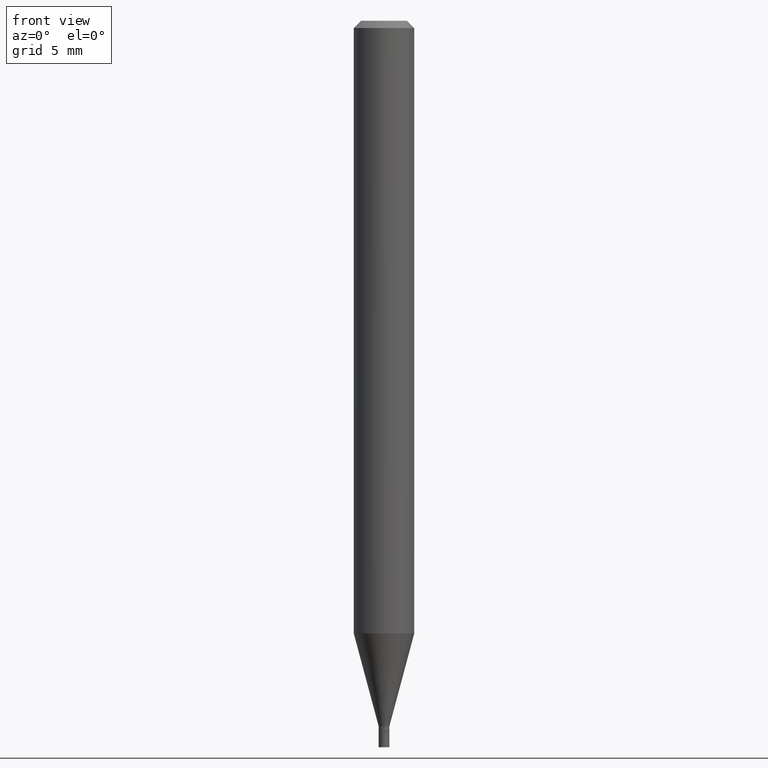
[diagram: clean part render]
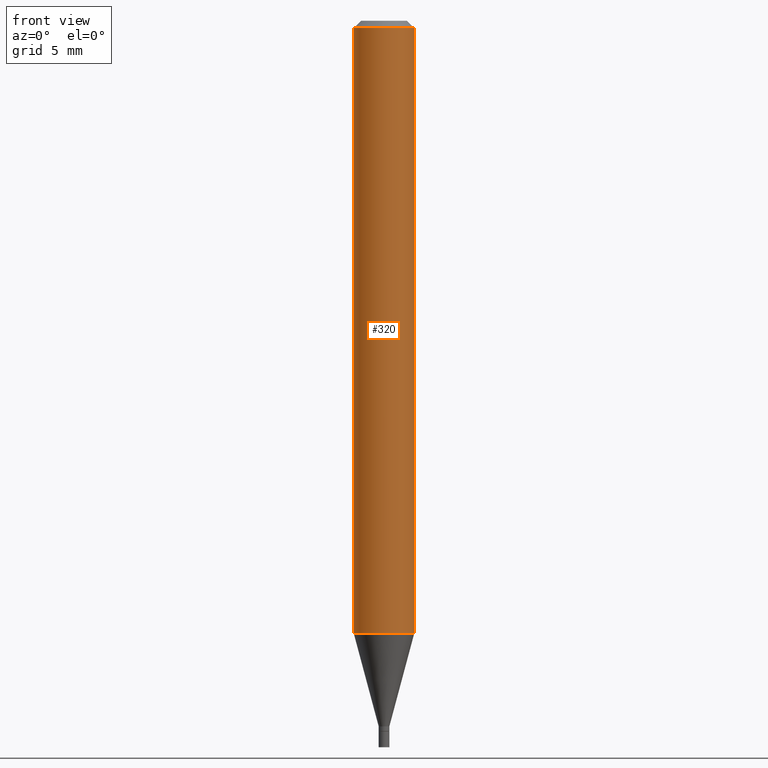
[diagram: same view with one face highlighted and labeled with its STEP entity id]
A machine part, front view. The second image highlights one B-rep face of the part: STEP entity #320.
In plain terms, the highlighted cylindrical surface (edge-blend (fillet) strip) has radius 1.5875 mm, axis along (-0, 0, 1).
Its self-contained STEP definition (entity closure, byte-faithful):
#14 = CARTESIAN_POINT ( 'NONE',  ( 0.000000000000000000, 0.000000000000000000, 0.000000000000000000 ) ) ;
#23 = CIRCLE ( 'NONE', #379, 0.06250000000000000000 ) ;
#30 = VERTEX_POINT ( 'NONE', #180 ) ;
#37 = AXIS2_PLACEMENT_3D ( 'NONE', #436, #324, #144 ) ;
#43 = CIRCLE ( 'NONE', #37, 0.06250000000000000000 ) ;
#69 = EDGE_CURVE ( 'NONE', #301, #90, #23, .T. ) ;
#75 = ORIENTED_EDGE ( 'NONE', *, *, #423, .T. ) ;
#80 = AXIS2_PLACEMENT_3D ( 'NONE', #14, #294, #155 ) ;
#83 = VERTEX_POINT ( 'NONE', #389 ) ;
#90 = VERTEX_POINT ( 'NONE', #344 ) ;
#104 = DIRECTION ( 'NONE',  ( -2.445468806185136877E-29, 3.491481338843145188E-15, 1.000000000000000000 ) ) ;
#109 = VECTOR ( 'NONE', #337, 39.37007874015748143 ) ;
#129 = LINE ( 'NONE', #415, #109 ) ;
#144 = DIRECTION ( 'NONE',  ( 1.000000000000000000, -6.982962677686266711E-15, 0.000000000000000000 ) ) ;
#151 = CARTESIAN_POINT ( 'NONE',  ( -0.06250000000000000000, -3.971934234706977480E-15, -1.264799383410203149 ) ) ;
#155 = DIRECTION ( 'NONE',  ( 1.000000000000000000, -6.982962677686266711E-15, 4.876176775795935793E-29 ) ) ;
#168 = EDGE_CURVE ( 'NONE', #301, #30, #463, .T. ) ;
#173 = CARTESIAN_POINT ( 'NONE',  ( 3.093027438211846075E-29, -4.416023444557040885E-15, -1.264799383410203149 ) ) ;
#180 = CARTESIAN_POINT ( 'NONE',  ( -0.06250000000000000000, -1.790108622469781169E-15, -0.01499999999999999944 ) ) ;
#207 = ORIENTED_EDGE ( 'NONE', *, *, #69, .T. ) ;
#262 = EDGE_LOOP ( 'NONE', ( #426, #207, #75, #341 ) ) ;
#292 = EDGE_CURVE ( 'NONE', #30, #83, #43, .T. ) ;
#294 = DIRECTION ( 'NONE',  ( -2.445468806185136597E-29, 3.491481338843145583E-15, 1.000000000000000000 ) ) ;
#301 = VERTEX_POINT ( 'NONE', #151 ) ;
#313 = CARTESIAN_POINT ( 'NONE',  ( -0.06250000000000000000, 4.440892098500626162E-16, -3.074334431409316114E-30 ) ) ;
#320 = ADVANCED_FACE ( 'NONE', ( #442 ), #396, .T. ) ;
#324 = DIRECTION ( 'NONE',  ( -2.445468806185136597E-29, 3.491481338843145583E-15, 1.000000000000000000 ) ) ;
#337 = DIRECTION ( 'NONE',  ( -2.445468806185136877E-29, 3.491481338843145188E-15, 1.000000000000000000 ) ) ;
#341 = ORIENTED_EDGE ( 'NONE', *, *, #292, .F. ) ;
#344 = CARTESIAN_POINT ( 'NONE',  ( 0.06250000000000000000, -4.852458611912431766E-15, -1.264799383410203149 ) ) ;
#364 = VECTOR ( 'NONE', #104, 39.37007874015748143 ) ;
#379 = AXIS2_PLACEMENT_3D ( 'NONE', #173, #459, #425 ) ;
#389 = CARTESIAN_POINT ( 'NONE',  ( 0.06250000000000000000, -4.888073874380388472E-16, -0.01499999999999999944 ) ) ;
#396 = CYLINDRICAL_SURFACE ( 'NONE', #80, 0.06250000000000000000 ) ;
#415 = CARTESIAN_POINT ( 'NONE',  ( 0.06250000000000000000, -4.364351673553916694E-16, 3.047610484872459871E-30 ) ) ;
#423 = EDGE_CURVE ( 'NONE', #90, #83, #129, .T. ) ;
#425 = DIRECTION ( 'NONE',  ( 1.000000000000000000, -6.982962677686262766E-15, 0.000000000000000000 ) ) ;
#426 = ORIENTED_EDGE ( 'NONE', *, *, #168, .F. ) ;
#436 = CARTESIAN_POINT ( 'NONE',  ( 3.668203209277705088E-31, -5.237222008264718399E-17, -0.01499999999999999944 ) ) ;
#442 = FACE_OUTER_BOUND ( 'NONE', #262, .T. ) ;
#459 = DIRECTION ( 'NONE',  ( -2.445468806185136597E-29, 3.491481338843145583E-15, 1.000000000000000000 ) ) ;
#463 = LINE ( 'NONE', #313, #364 ) ;